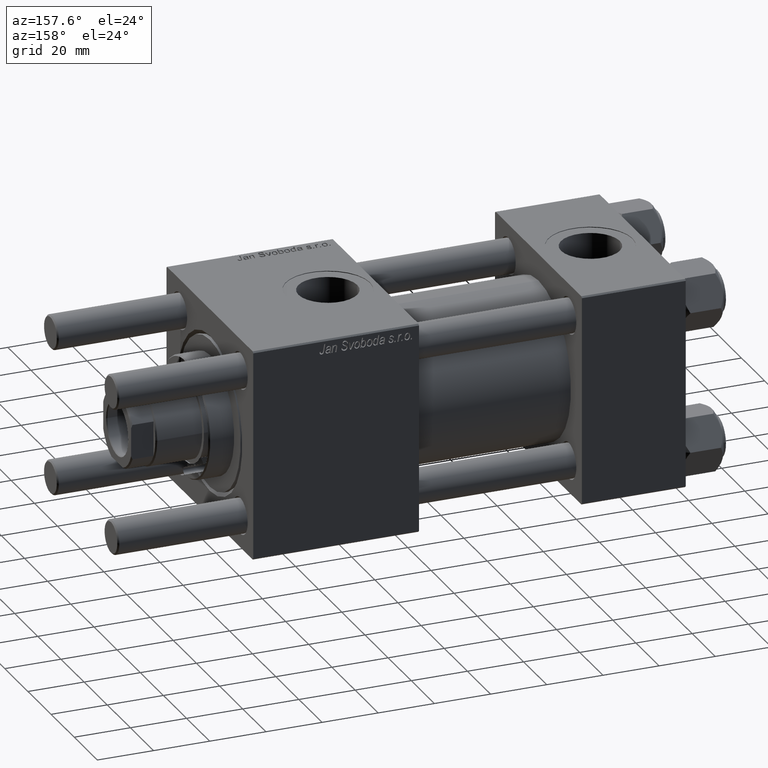
[diagram: clean part render]
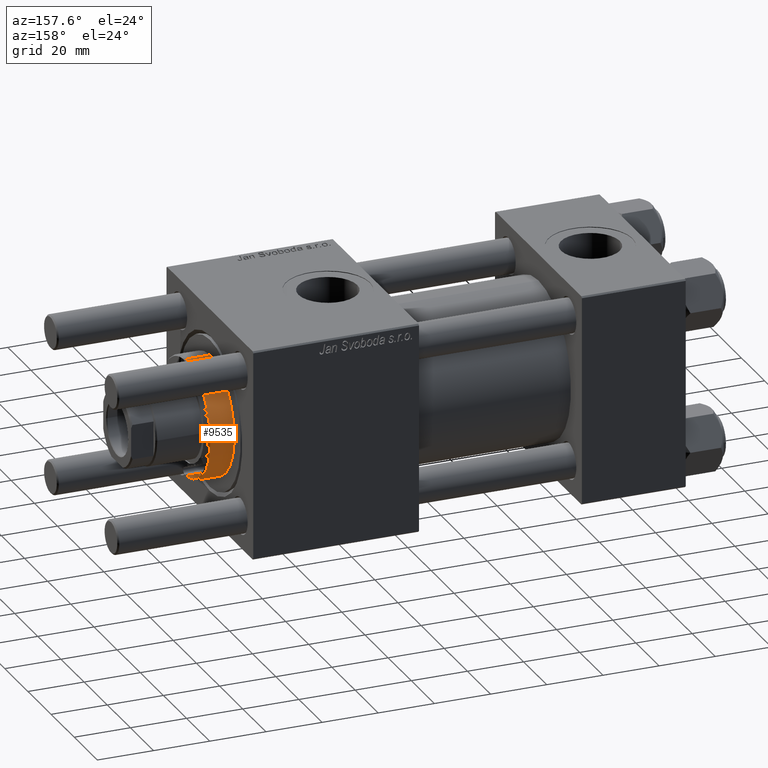
[diagram: same view with one face highlighted and labeled with its STEP entity id]
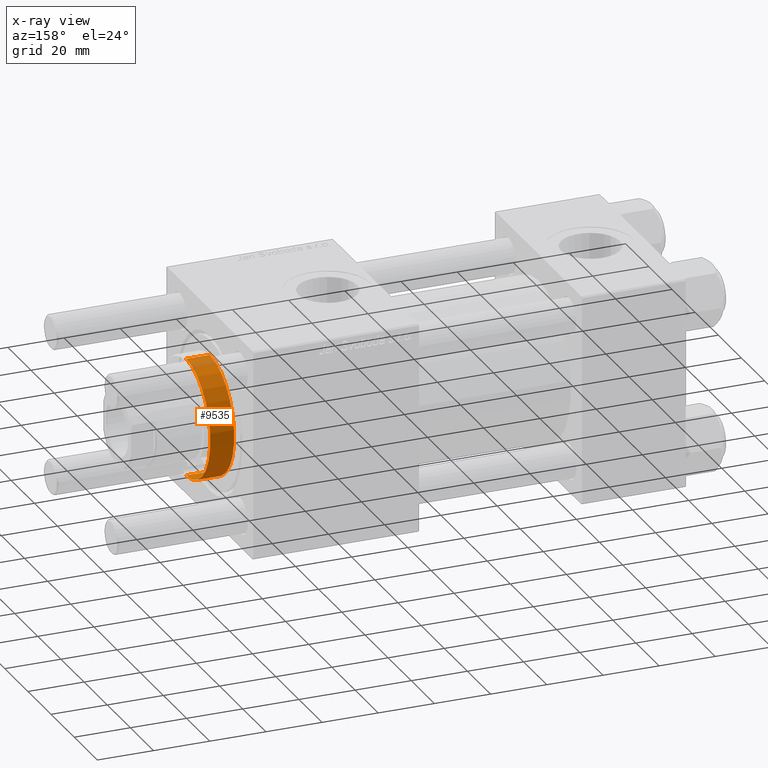
[diagram: x-ray of the same camera — body ghosted, the highlighted face saturated]
A machine part, auxiliary view. The second image highlights one B-rep face of the part: STEP entity #9535.
The next image is the same camera in x-ray: the body ghosted, the highlighted face saturated — about 7% of this face is hidden behind the body in this view.
In plain terms, the highlighted cylindrical surface (partial cylindrical patch) has radius 21 mm, axis along (-1, -0, 0).
Its self-contained STEP definition (entity closure, byte-faithful):
#77 = DIRECTION ( 'NONE',  ( 0.000000000000000000, 0.000000000000000000, -1.000000000000000000 ) ) ;
#137 = EDGE_CURVE ( 'NONE', #1515, #31641, #22606, .T. ) ;
#1515 = VERTEX_POINT ( 'NONE', #36377 ) ;
#1527 = CARTESIAN_POINT ( 'NONE',  ( 0.000000000000000000, 0.000000000000000000, 37.69999999999999574 ) ) ;
#3468 = DIRECTION ( 'NONE',  ( -0.000000000000000000, -0.000000000000000000, -1.000000000000000000 ) ) ;
#6529 = VERTEX_POINT ( 'NONE', #56466 ) ;
#9376 = LINE ( 'NONE', #31217, #23688 ) ;
#9535 = ADVANCED_FACE ( 'NONE', ( #10163 ), #40917, .T. ) ;
#10163 = FACE_OUTER_BOUND ( 'NONE', #35506, .T. ) ;
#11221 = ORIENTED_EDGE ( 'NONE', *, *, #137, .T. ) ;
#11903 = ORIENTED_EDGE ( 'NONE', *, *, #42893, .T. ) ;
#14847 = CARTESIAN_POINT ( 'NONE',  ( 21.00000000000000000, 2.571758278209441661E-15, 37.19999999999999574 ) ) ;
#17217 = AXIS2_PLACEMENT_3D ( 'NONE', #35495, #52772, #43272 ) ;
#17630 = DIRECTION ( 'NONE',  ( 1.000000000000000000, 0.000000000000000000, 0.000000000000000000 ) ) ;
#21130 = VERTEX_POINT ( 'NONE', #47691 ) ;
#22606 = CIRCLE ( 'NONE', #40043, 21.00000000000000000 ) ;
#23688 = VECTOR ( 'NONE', #35260, 1000.000000000000000 ) ;
#28545 = DIRECTION ( 'NONE',  ( -0.000000000000000000, -0.000000000000000000, -1.000000000000000000 ) ) ;
#29940 = ORIENTED_EDGE ( 'NONE', *, *, #54503, .F. ) ;
#31217 = CARTESIAN_POINT ( 'NONE',  ( 21.00000000000000000, 2.571758278209441661E-15, 37.69999999999999574 ) ) ;
#31641 = VERTEX_POINT ( 'NONE', #14847 ) ;
#31957 = CARTESIAN_POINT ( 'NONE',  ( 0.000000000000000000, 0.000000000000000000, 37.19999999999999574 ) ) ;
#35260 = DIRECTION ( 'NONE',  ( -0.000000000000000000, -0.000000000000000000, -1.000000000000000000 ) ) ;
#35495 = CARTESIAN_POINT ( 'NONE',  ( 0.000000000000000000, 0.000000000000000000, 28.69999999999999929 ) ) ;
#35506 = EDGE_LOOP ( 'NONE', ( #11221, #11903, #39718, #29940 ) ) ;
#36377 = CARTESIAN_POINT ( 'NONE',  ( -21.00000000000000000, 0.000000000000000000, 37.19999999999999574 ) ) ;
#38567 = VECTOR ( 'NONE', #3468, 1000.000000000000000 ) ;
#39376 = EDGE_CURVE ( 'NONE', #21130, #6529, #53959, .T. ) ;
#39718 = ORIENTED_EDGE ( 'NONE', *, *, #39376, .T. ) ;
#40043 = AXIS2_PLACEMENT_3D ( 'NONE', #31957, #77, #17630 ) ;
#40917 = CYLINDRICAL_SURFACE ( 'NONE', #53964, 21.00000000000000000 ) ;
#42893 = EDGE_CURVE ( 'NONE', #31641, #21130, #9376, .T. ) ;
#43150 = CARTESIAN_POINT ( 'NONE',  ( -21.00000000000000000, 0.000000000000000000, 37.69999999999999574 ) ) ;
#43272 = DIRECTION ( 'NONE',  ( 1.000000000000000000, 0.000000000000000000, 0.000000000000000000 ) ) ;
#47691 = CARTESIAN_POINT ( 'NONE',  ( 21.00000000000000000, 2.571758278209441661E-15, 28.69999999999999929 ) ) ;
#50694 = DIRECTION ( 'NONE',  ( -1.000000000000000000, 0.000000000000000000, 0.000000000000000000 ) ) ;
#52772 = DIRECTION ( 'NONE',  ( 0.000000000000000000, 0.000000000000000000, 1.000000000000000000 ) ) ;
#53959 = CIRCLE ( 'NONE', #17217, 21.00000000000000000 ) ;
#53964 = AXIS2_PLACEMENT_3D ( 'NONE', #1527, #28545, #50694 ) ;
#54503 = EDGE_CURVE ( 'NONE', #1515, #6529, #56127, .T. ) ;
#56127 = LINE ( 'NONE', #43150, #38567 ) ;
#56466 = CARTESIAN_POINT ( 'NONE',  ( -21.00000000000000000, 0.000000000000000000, 28.69999999999999929 ) ) ;